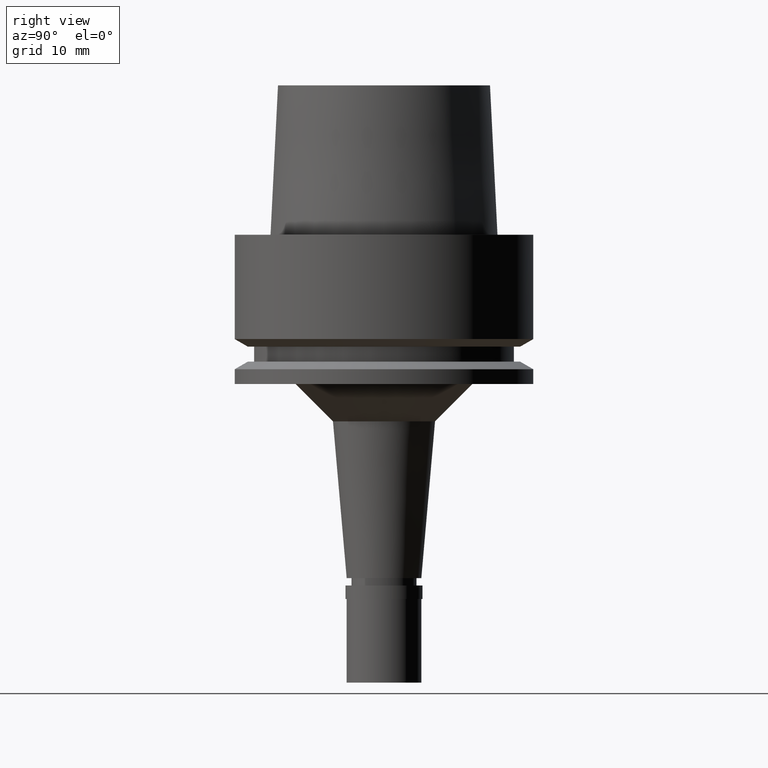
[diagram: clean part render]
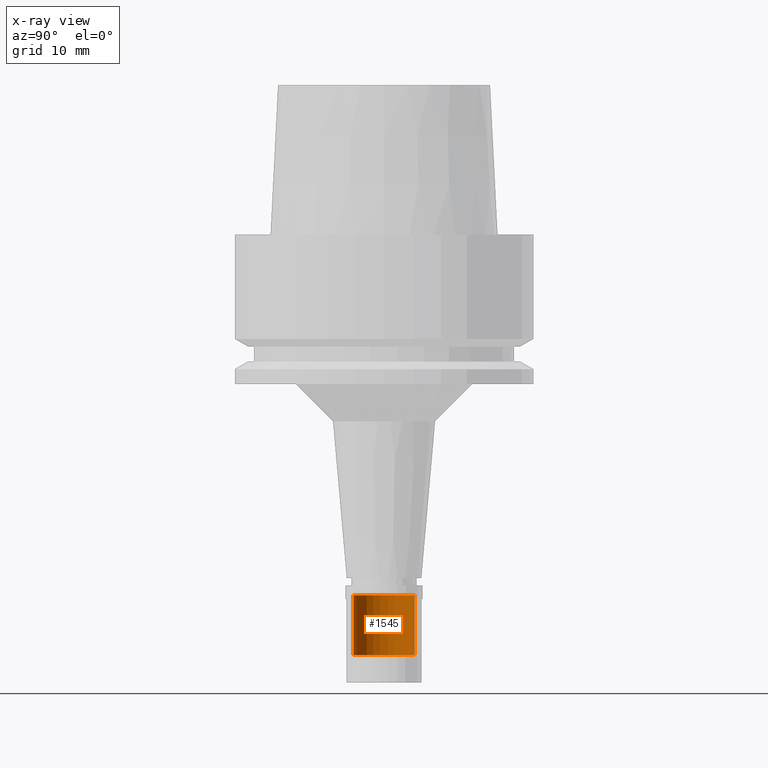
[diagram: x-ray — body ghosted, one internal face saturated and labeled with its STEP entity id]
A machine part, right view, then the same camera in x-ray: the body is ghosted and one INTERNAL B-rep face — a face not visible from any outside direction — is saturated and labeled: STEP entity #1545.
In plain terms, the highlighted cylindrical surface (edge-blend (fillet) strip) has radius 4.1 mm, axis along (0, 0, 1).
Its self-contained STEP definition (entity closure, byte-faithful):
#8 = CIRCLE ( 'NONE', #700, 4.100000000000000533 ) ;
#22 = DIRECTION ( 'NONE',  ( 0.0000000000000000000, 0.0000000000000000000, 1.000000000000000000 ) ) ;
#112 = DIRECTION ( 'NONE',  ( 0.0000000000000000000, 0.0000000000000000000, -1.000000000000000000 ) ) ;
#306 = LINE ( 'NONE', #1329, #1425 ) ;
#383 = DIRECTION ( 'NONE',  ( 0.0000000000000000000, -1.000000000000000000, 0.0000000000000000000 ) ) ;
#433 = DIRECTION ( 'NONE',  ( 0.0000000000000000000, 1.000000000000000000, 0.0000000000000000000 ) ) ;
#437 = EDGE_CURVE ( 'NONE', #2654, #2143, #8, .T. ) ;
#453 = DIRECTION ( 'NONE',  ( 0.0000000000000000000, 1.000000000000000000, 0.0000000000000000000 ) ) ;
#537 = VERTEX_POINT ( 'NONE', #2575 ) ;
#595 = CYLINDRICAL_SURFACE ( 'NONE', #1663, 4.100000000000000533 ) ;
#663 = CARTESIAN_POINT ( 'NONE',  ( 0.0000000000000000000, 0.0000000000000000000, -56.30000000000000426 ) ) ;
#671 = CARTESIAN_POINT ( 'NONE',  ( 0.0000000000000000000, 4.100000000000000533, -56.30000000000000426 ) ) ;
#700 = AXIS2_PLACEMENT_3D ( 'NONE', #973, #2264, #383 ) ;
#741 = AXIS2_PLACEMENT_3D ( 'NONE', #663, #2330, #453 ) ;
#775 = EDGE_CURVE ( 'NONE', #1620, #537, #1514, .T. ) ;
#973 = CARTESIAN_POINT ( 'NONE',  ( 0.0000000000000000000, 0.0000000000000000000, -48.30000000000000426 ) ) ;
#1197 = ORIENTED_EDGE ( 'NONE', *, *, #437, .T. ) ;
#1232 = FACE_OUTER_BOUND ( 'NONE', #2568, .T. ) ;
#1329 = CARTESIAN_POINT ( 'NONE',  ( 0.0000000000000000000, -4.100000000000000533, -48.30000000000000426 ) ) ;
#1366 = ORIENTED_EDGE ( 'NONE', *, *, #2366, .T. ) ;
#1425 = VECTOR ( 'NONE', #2403, 1000.000000000000000 ) ;
#1514 = CIRCLE ( 'NONE', #741, 4.100000000000000533 ) ;
#1545 = ADVANCED_FACE ( 'NONE', ( #1232 ), #595, .T. ) ;
#1620 = VERTEX_POINT ( 'NONE', #671 ) ;
#1647 = ORIENTED_EDGE ( 'NONE', *, *, #2351, .F. ) ;
#1658 = CARTESIAN_POINT ( 'NONE',  ( 0.0000000000000000000, 4.100000000000000533, -48.30000000000000426 ) ) ;
#1663 = AXIS2_PLACEMENT_3D ( 'NONE', #2295, #22, #433 ) ;
#1892 = CARTESIAN_POINT ( 'NONE',  ( 0.0000000000000000000, -4.100000000000000533, -48.30000000000000426 ) ) ;
#1923 = VECTOR ( 'NONE', #112, 1000.000000000000000 ) ;
#1982 = LINE ( 'NONE', #2174, #1923 ) ;
#1983 = ORIENTED_EDGE ( 'NONE', *, *, #775, .T. ) ;
#2143 = VERTEX_POINT ( 'NONE', #1658 ) ;
#2174 = CARTESIAN_POINT ( 'NONE',  ( 0.0000000000000000000, 4.100000000000000533, -48.30000000000000426 ) ) ;
#2264 = DIRECTION ( 'NONE',  ( 0.0000000000000000000, 0.0000000000000000000, -1.000000000000000000 ) ) ;
#2295 = CARTESIAN_POINT ( 'NONE',  ( 0.0000000000000000000, 0.0000000000000000000, -60.11500000000000199 ) ) ;
#2330 = DIRECTION ( 'NONE',  ( 0.0000000000000000000, 0.0000000000000000000, 1.000000000000000000 ) ) ;
#2351 = EDGE_CURVE ( 'NONE', #2654, #537, #306, .T. ) ;
#2366 = EDGE_CURVE ( 'NONE', #2143, #1620, #1982, .T. ) ;
#2403 = DIRECTION ( 'NONE',  ( 0.0000000000000000000, 0.0000000000000000000, -1.000000000000000000 ) ) ;
#2568 = EDGE_LOOP ( 'NONE', ( #1983, #1647, #1197, #1366 ) ) ;
#2575 = CARTESIAN_POINT ( 'NONE',  ( 0.0000000000000000000, -4.100000000000000533, -56.30000000000000426 ) ) ;
#2654 = VERTEX_POINT ( 'NONE', #1892 ) ;